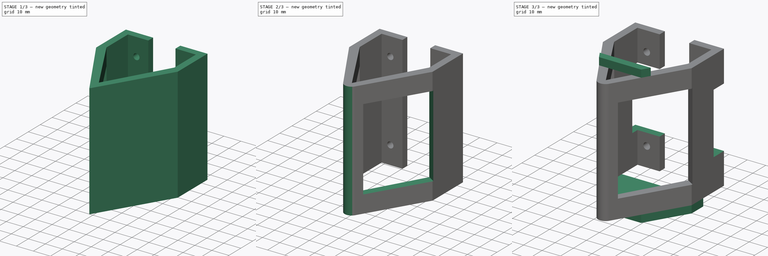
[diagram: build sequence overview — one tinted view per stage of 3, left to right]
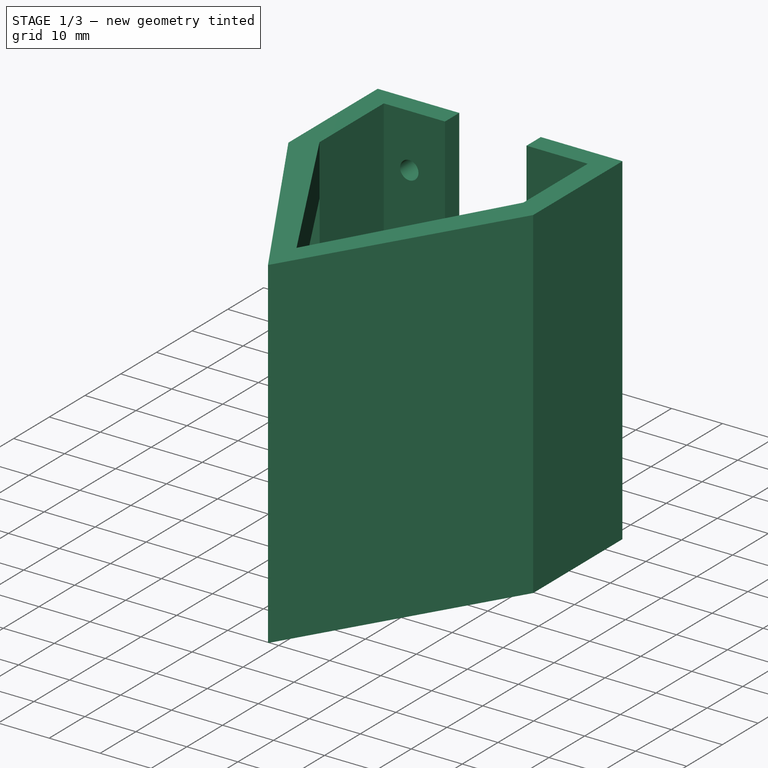
[diagram: stage 1 of 3 — iso view after this stage's code; geometry added in this stage tinted green]
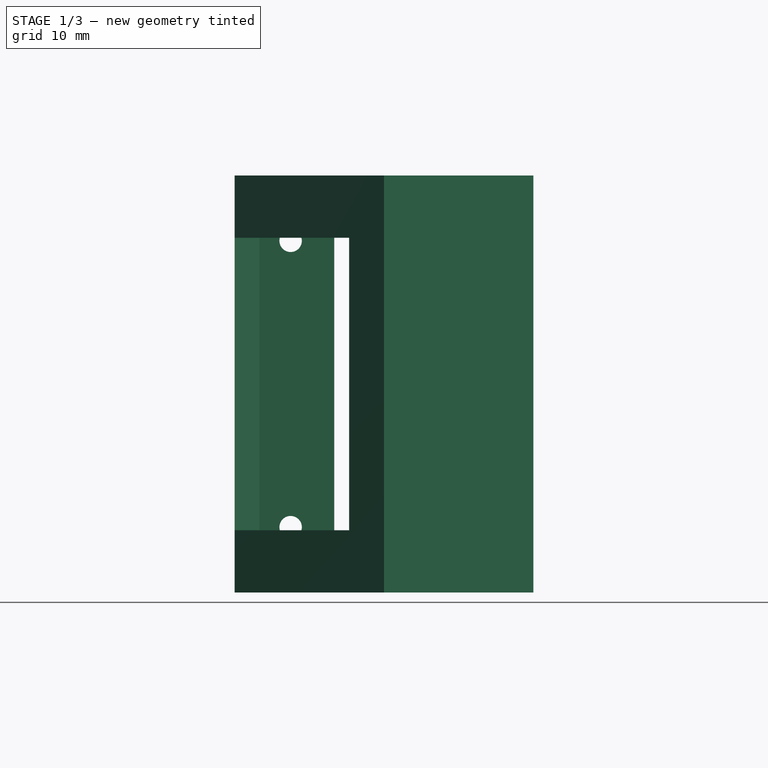
[diagram: stage 1 of 3 — front view after this stage's code; geometry added in this stage tinted green]
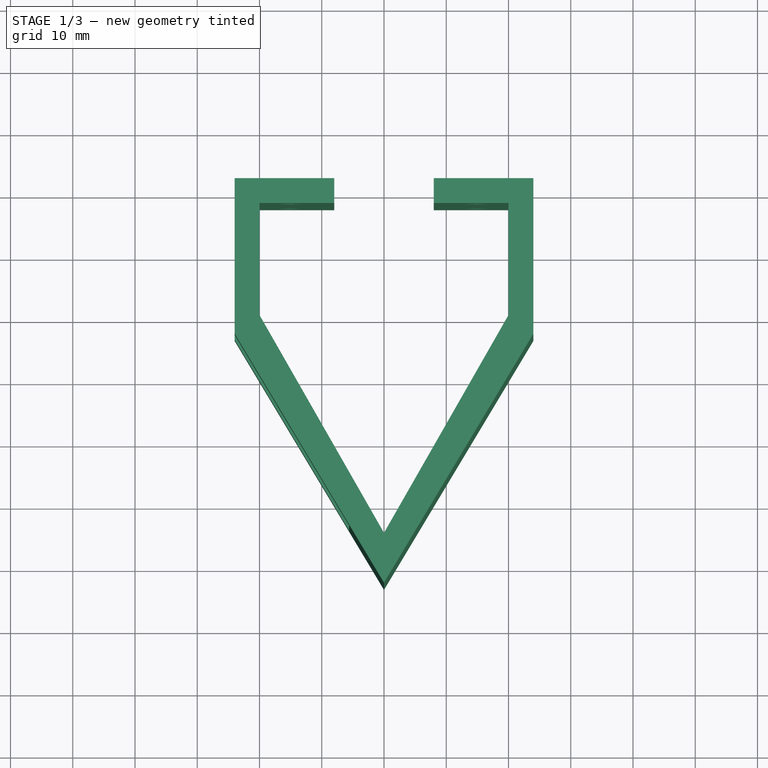
[diagram: stage 1 of 3 — top view after this stage's code; geometry added in this stage tinted green]
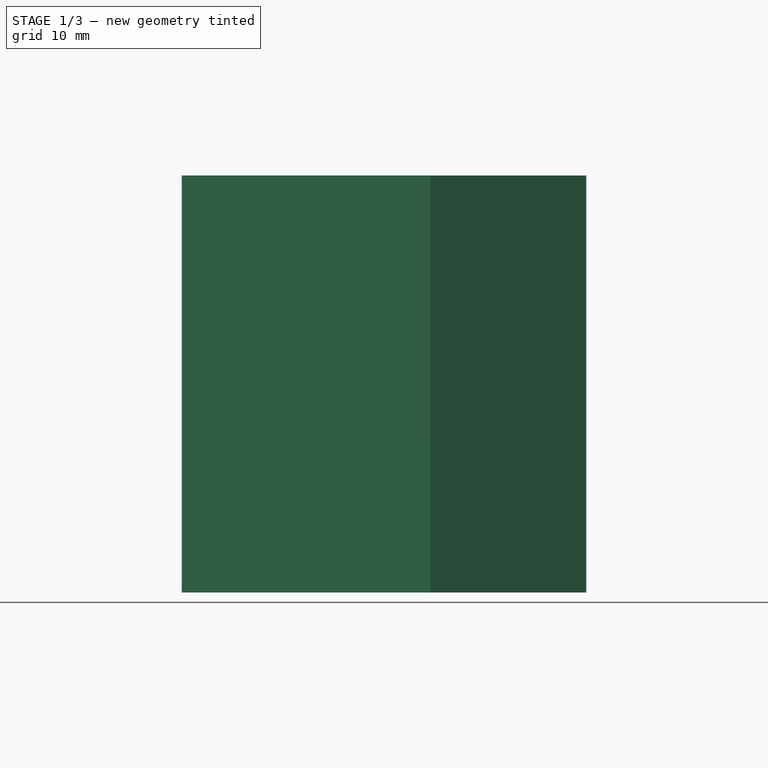
[diagram: stage 1 of 3 — right view after this stage's code; geometry added in this stage tinted green]
FCSTD DOCUMENT  (FreeCAD 0.21R33694 (Git))
Label: batteryHolder
License: All rights reserved
LicenseURL: http://en.wikipedia.org/wiki/All_rights_reserved
objects: Sketcher::SketchObject×7, PartDesign::Pocket×4, PartDesign::Pad×3, PartDesign::Fillet×1, PartDesign::Body×1
note: 24 computed .brp shape members not serialized (recipe doc carries the construction recipe); baked Part::Feature solids carry a one-line shape summary decoded from their .brp

FEATURE [Sketcher::SketchObject] Sketch
  FullyConstrained = true
  MapMode = 5
  Support = -> [XY_Plane]
  sketch-geometry (20):
    g0: LineSegment StartX=20 StartY=22 StartZ=0 EndX=24 EndY=22 EndZ=0
    g1: LineSegment StartX=24 StartY=22 StartZ=0 EndX=24 EndY=0 EndZ=0
    g2: LineSegment StartX=24 StartY=0 StartZ=0 EndX=20 EndY=0 EndZ=0
    g3: LineSegment StartX=20 StartY=0 StartZ=0 EndX=20 EndY=18 EndZ=0
    g4: LineSegment StartX=-24 StartY=22 StartZ=0 EndX=-20 EndY=22 EndZ=0
    g5: LineSegment StartX=-20 StartY=18 StartZ=0 EndX=-20 EndY=0 EndZ=0
    g6: LineSegment StartX=-20 StartY=0 StartZ=0 EndX=-24 EndY=0 EndZ=0
    g7: LineSegment StartX=-24 StartY=0 StartZ=0 EndX=-24 EndY=22 EndZ=0
    g8: LineSegment StartX=20 StartY=22 StartZ=0 EndX=8 EndY=22 EndZ=0
    g9: LineSegment StartX=8 StartY=22 StartZ=0 EndX=8 EndY=18 EndZ=0
    g10: LineSegment StartX=-20 StartY=22 StartZ=0 EndX=-8 EndY=22 EndZ=0
    g11: LineSegment StartX=-8 StartY=22 StartZ=0 EndX=-8 EndY=18 EndZ=0
    g12: LineSegment StartX=-8 StartY=18 StartZ=0 EndX=-20 EndY=18 EndZ=0
    g13: LineSegment StartX=-20 StartY=0 StartZ=0 EndX=5e-16 EndY=-35 EndZ=0
    g14: LineSegment StartX=24 StartY=0 StartZ=0 EndX=24 EndY=-3 EndZ=0
    g15: LineSegment StartX=24 StartY=-3 StartZ=0 EndX=1.4e-15 EndY=-43 EndZ=0
    g16: LineSegment StartX=1.4e-15 StartY=-43 StartZ=0 EndX=-24 EndY=-3 EndZ=0
    g17: LineSegment StartX=-24 StartY=-3 StartZ=0 EndX=-24 EndY=0 EndZ=0
    g18: LineSegment StartX=20 StartY=0 StartZ=0 EndX=-5e-16 EndY=-35 EndZ=0
    g19: LineSegment StartX=20 StartY=18 StartZ=0 EndX=8 EndY=18 EndZ=0
  constraints (58):
    c: Coincident(g0,g1)
    c: Coincident(g1,g2)
    c: Coincident(g2,g3)
    c: Horizontal(g0)
    c: Horizontal(g2)
    c: Vertical(g1)
    c: Vertical(g3)
    c: PointOnObject(g1,g-1)
    c: Coincident(g5,g6)
    c: Coincident(g6,g7)
    c: Coincident(g7,g4)
    c: Horizontal(g4)
    c: Horizontal(g6)
    c: Vertical(g5)
    c: Vertical(g7)
    c: PointOnObject(g5,g-1)
    c: DistanceY(g0,g4) = 0
    c: DistanceX(g4,g4) = 4
    c: DistanceX(g0,g0) = 4
    c: DistanceX(g-1,g2) = 20
    c: DistanceX(g5,g-1) = 20
    c: DistanceY(g-1,g4) = 22
    c: Coincident(g8,g9)
    c: Horizontal(g8)
    c: Vertical(g9)
    c: Coincident(g8,g0)
    c: Coincident(g10,g11)
    c: Coincident(g11,g12)
    c: Horizontal(g10)
    c: Horizontal(g12)
    c: Vertical(g11)
    c: Coincident(g10,g4)
    c: DistanceY(g11,g9) = 0
    c: DistanceY(g11,g10) = 4
    c: Coincident(g13,g5)
    c: PointOnObject(g13,g-2)
    c: Coincident(g14,g1)
    c: Vertical(g14)
    c: Coincident(g15,g14)
    c: PointOnObject(g15,g-2)
    c: Coincident(g16,g15)
    c: Coincident(g17,g16)
    c: Coincident(g17,g6)
    c: Vertical(g17)
    c: DistanceY(g16,g6) = 3
    c: DistanceY(g14,g1) = 3
    c: DistanceY(g15,g13) = 8
    c: DistanceY(g13,g-1) = 35
    c: Coincident(g18,g2)
    c: Coincident(g18,g13)
    c: DistanceX(g2,g1) = 4
    c: DistanceX(g6,g5) = 4
    c: DistanceX(g4,g10) = 12
    c: DistanceX(g8,g0) = 12
    c: Coincident(g5,g12)
    c: Coincident(g19,g3)
    c: Coincident(g19,g9)
    c: Horizontal(g19)
FEATURE [PartDesign::Pad] Pad
  Direction = (0,0,1)
  Length = 67
  Length2 = 10
  Profile = -> Sketch
  ReferenceAxis = -> Sketch [N_Axis]
  Type = 0
FEATURE [Sketcher::SketchObject] Sketch001
  FullyConstrained = true
  MapMode = 5
  Placement = pos=(0,22,0) rot=(0,0.707107,0.707107;3.14159rad)
  Support = -> [Pad]
  sketch-geometry (4):
    g0: Circle CenterX=15 CenterY=56.5 CenterZ=0 NormalX=0 NormalY=0 NormalZ=1 AngleXU=0 Radius=1.8
    g1: Circle CenterX=15 CenterY=10.5 CenterZ=0 NormalX=0 NormalY=0 NormalZ=1 AngleXU=0 Radius=1.8
    g2: Circle CenterX=-15 CenterY=56.5 CenterZ=0 NormalX=0 NormalY=0 NormalZ=1 AngleXU=0 Radius=1.8
    g3: Circle CenterX=-15 CenterY=10.5 CenterZ=0 NormalX=0 NormalY=0 NormalZ=1 AngleXU=0 Radius=1.8
  constraints (12):
    c: Radius(g2) = 1.8
    c: Radius(g3) = 1.8
    c: Radius(g0) = 1.8
    c: Radius(g1) = 1.8
    c: DistanceX(g3,g2) = 0
    c: DistanceX(g1,g0) = 0
    c: DistanceY(g2,g0) = 0
    c: DistanceY(g1,g3) = 0
    c: DistanceX(g-1,g1) = 15
    c: DistanceX(g3,g-1) = 15
    c: DistanceY(g-1,g1) = 10.5
    c: DistanceY(g3,g2) = 46
FEATURE [PartDesign::Pocket] Pocket
  BaseFeature = -> Pad
  Direction = (0,-1,2e-16)
  Length = 5
  Length2 = 5
  Profile = -> Sketch001
  ReferenceAxis = -> Sketch001 [N_Axis]
  Type = 0
FEATURE [Sketcher::SketchObject] Sketch002
  FullyConstrained = true
  MapMode = 5
  Placement = pos=(-18.9706,-11.3824,0) rot=(0.780597,-0.441966,-0.441966;1.816rad)
  Support = -> [Pocket]
  sketch-geometry (4):
    g0: LineSegment StartX=-10.32 StartY=57 StartZ=0 EndX=26 EndY=57 EndZ=0
    g1: LineSegment StartX=26 StartY=57 StartZ=0 EndX=26 EndY=10 EndZ=0
    g2: LineSegment StartX=26 StartY=10 StartZ=0 EndX=-10.32 EndY=10 EndZ=0
    g3: LineSegment StartX=-10.32 StartY=10 StartZ=0 EndX=-10.32 EndY=57 EndZ=0
  constraints (12):
    c: Coincident(g0,g1)
    c: Coincident(g1,g2)
    c: Coincident(g2,g3)
    c: Coincident(g3,g0)
    c: Horizontal(g0)
    c: Horizontal(g2)
    c: Vertical(g1)
    c: Vertical(g3)
    c: DistanceY(g-1,g2) = 10
    c: DistanceY(g2,g0) = 47
    c: DistanceX(g2,g-1) = 10.32
    c: DistanceX(g-1,g1) = 26
FEATURE [PartDesign::Pocket] Pocket001
  BaseFeature = -> Pocket
  Direction = (0.857493,0.514496,-1e-16)
  Length = 5
  Length2 = 5
  Profile = -> Sketch002
  ReferenceAxis = -> Sketch002 [N_Axis]
  Type = 0
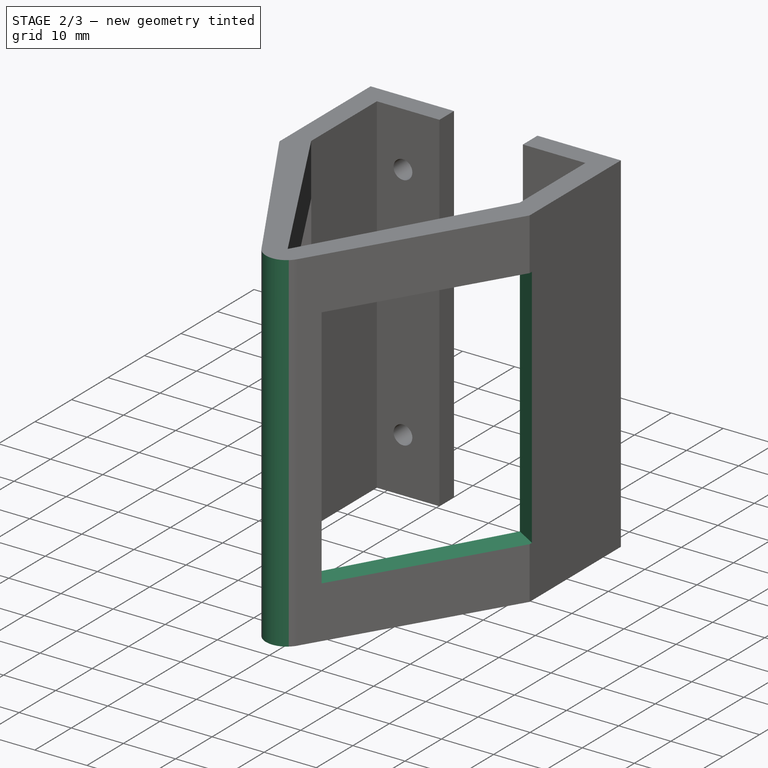
[diagram: stage 2 of 3 — iso view after this stage's code; geometry added in this stage tinted green]
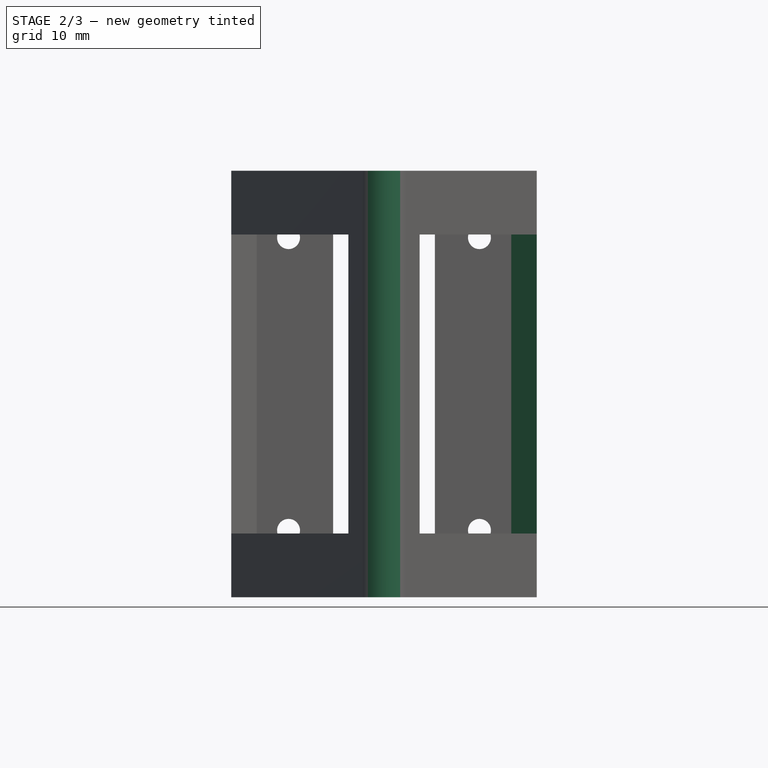
[diagram: stage 2 of 3 — front view after this stage's code; geometry added in this stage tinted green]
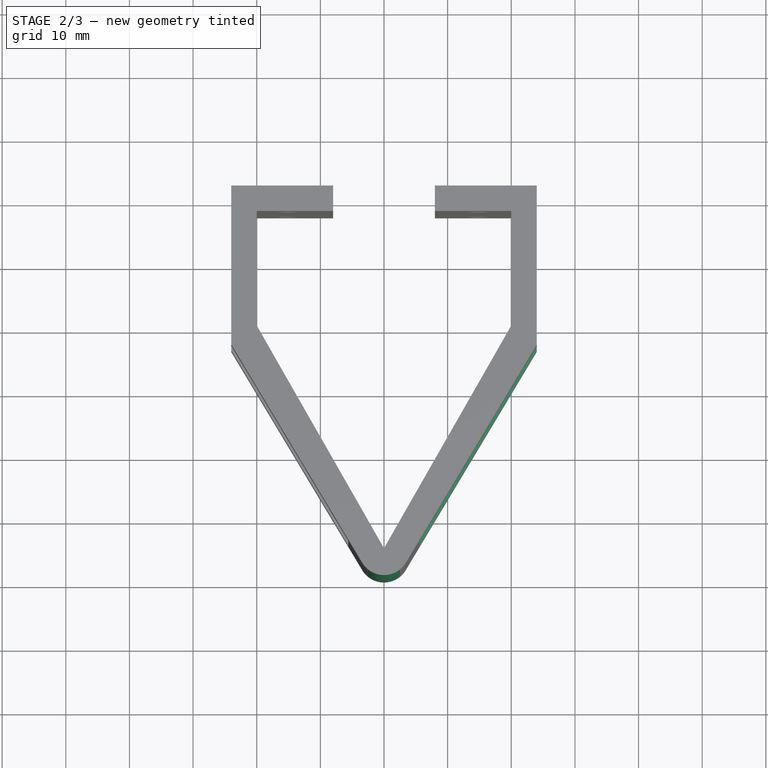
[diagram: stage 2 of 3 — top view after this stage's code; geometry added in this stage tinted green]
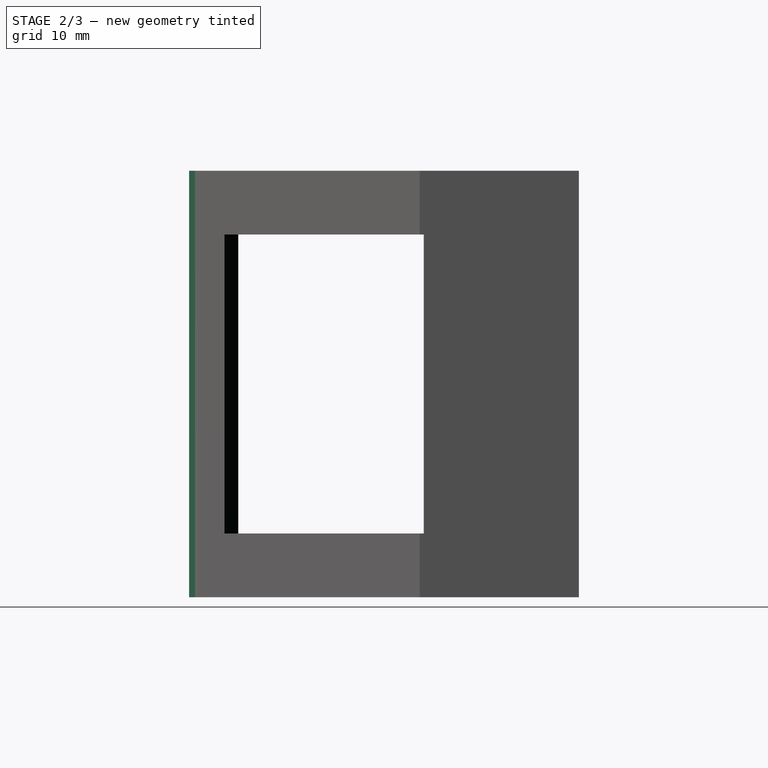
[diagram: stage 2 of 3 — right view after this stage's code; geometry added in this stage tinted green]
FEATURE [Sketcher::SketchObject] Sketch003
  FullyConstrained = true
  MapMode = 5
  Placement = pos=(18.9706,-11.3824,0) rot=(0.780597,0.441966,0.441966;1.816rad)
  Support = -> [Pocket001]
  sketch-geometry (4):
    g0: LineSegment StartX=-26 StartY=57 StartZ=0 EndX=10.32 EndY=57 EndZ=0
    g1: LineSegment StartX=10.32 StartY=57 StartZ=0 EndX=10.32 EndY=10 EndZ=0
    g2: LineSegment StartX=10.32 StartY=10 StartZ=0 EndX=-26 EndY=10 EndZ=0
    g3: LineSegment StartX=-26 StartY=10 StartZ=0 EndX=-26 EndY=57 EndZ=0
  constraints (12):
    c: Coincident(g0,g1)
    c: Coincident(g1,g2)
    c: Coincident(g2,g3)
    c: Coincident(g3,g0)
    c: Horizontal(g0)
    c: Horizontal(g2)
    c: Vertical(g1)
    c: Vertical(g3)
    c: DistanceY(g-1,g1) = 10
    c: DistanceY(g1,g0) = 47
    c: DistanceX(g-1,g1) = 10.32
    c: DistanceX(g2,g-1) = 26
FEATURE [PartDesign::Pocket] Pocket002
  BaseFeature = -> Pocket001
  Direction = (-0.857493,0.514496,-1e-16)
  Length = 5
  Length2 = 5
  Profile = -> Sketch003
  ReferenceAxis = -> Sketch003 [N_Axis]
  Type = 0
FEATURE [PartDesign::Fillet] Fillet
  Base = -> Pocket002 [Edge53]
  BaseFeature = -> Pocket002
  Radius = 4
  SupportTransform = false
  UseAllEdges = false
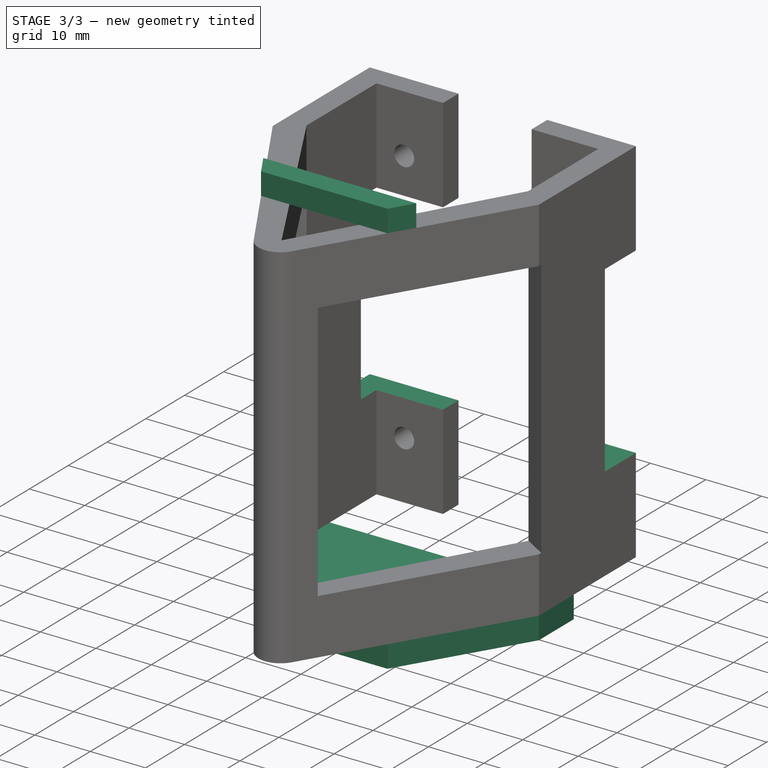
[diagram: stage 3 of 3 — iso view after this stage's code; geometry added in this stage tinted green]
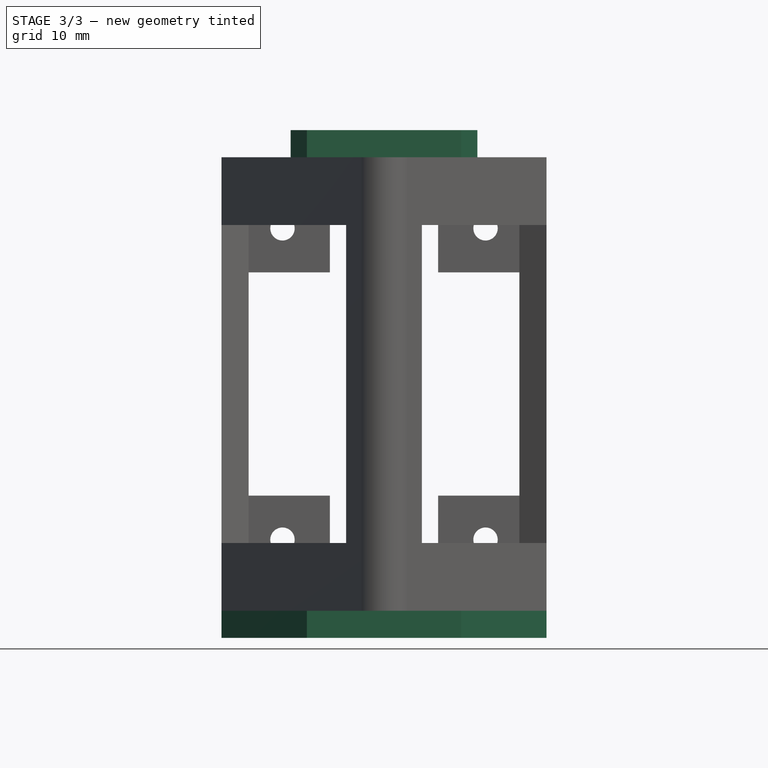
[diagram: stage 3 of 3 — front view after this stage's code; geometry added in this stage tinted green]
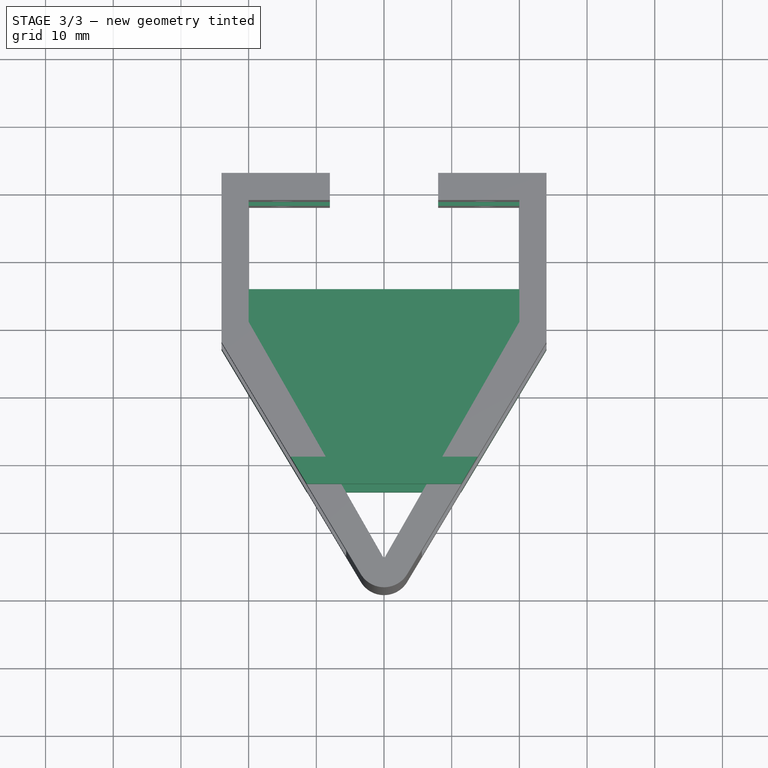
[diagram: stage 3 of 3 — top view after this stage's code; geometry added in this stage tinted green]
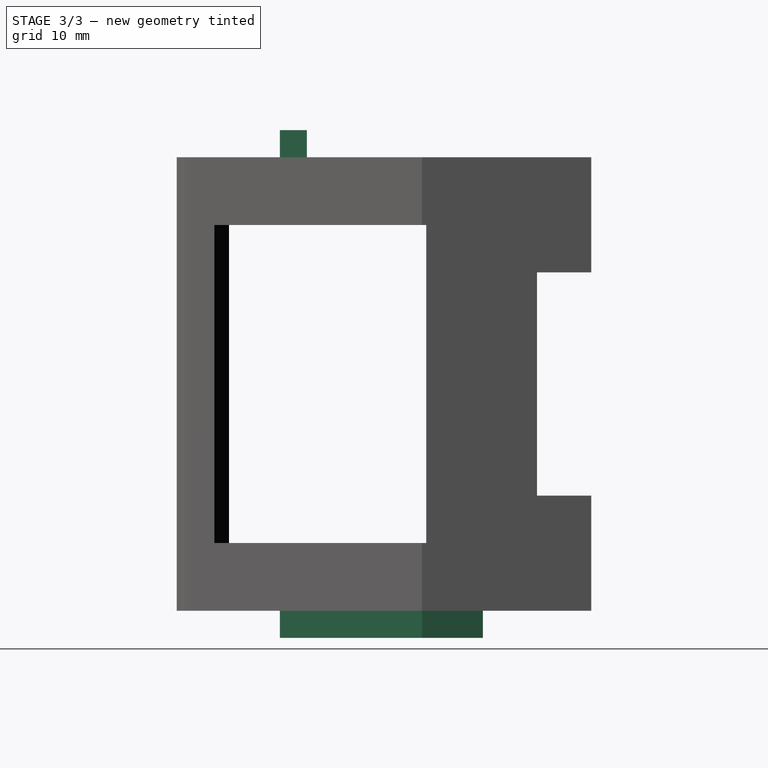
[diagram: stage 3 of 3 — right view after this stage's code; geometry added in this stage tinted green]
FEATURE [Sketcher::SketchObject] Sketch004
  FullyConstrained = true
  MapMode = 5
  Placement = pos=(0,0,0) rot=(1,0,0;3.14159rad)
  Support = -> [Pad]
  sketch-geometry (9):
    g0: LineSegment StartX=24 StartY=3 StartZ=0 EndX=24 EndY=-6 EndZ=0
    g1: LineSegment StartX=24 StartY=-6 StartZ=0 EndX=-24 EndY=-6 EndZ=0
    g2: LineSegment StartX=-24 StartY=-6 StartZ=0 EndX=-24 EndY=3 EndZ=0
    g3: LineSegment StartX=-24 StartY=3 StartZ=0 EndX=-1.4e-15 EndY=43 EndZ=0
    g4: LineSegment StartX=-1.4e-15 StartY=43 StartZ=0 EndX=24 EndY=3 EndZ=0
    g5: LineSegment StartX=-11.4 StartY=24 StartZ=0 EndX=11.4 EndY=24 EndZ=0
    g6: LineSegment StartX=11.4 StartY=24 StartZ=0 EndX=24 EndY=3 EndZ=0
    g7: LineSegment StartX=11.4 StartY=24 StartZ=0 EndX=24 EndY=3 EndZ=0
    g8: LineSegment StartX=-11.4 StartY=24 StartZ=0 EndX=-24 EndY=3 EndZ=0
  constraints (25):
    c: Vertical(g0)
    c: Coincident(g1,g0)
    c: Horizontal(g1)
    c: Coincident(g2,g1)
    c: Vertical(g2)
    c: Coincident(g3,g2)
    c: Coincident(g4,g0)
    c: DistanceY(g2,g0) = 0
    c: DistanceY(g1,g-1) = 6
    c: DistanceX(g-1,g0) = 24
    c: DistanceX(g1,g-1) = 24
    c: DistanceY(g-1,g0) = 3
    c: Coincident(g3,g4)
    c: DistanceX(g3,g-1) = 0
    c: DistanceY(g-1,g3) = 43
    c: PointOnObject(g5,g3)
    c: PointOnObject(g5,g4)
    c: Horizontal(g5)
    c: DistanceY(g-1,g5) = 24
    c: Coincident(g6,g5)
    c: Coincident(g6,g0)
    c: Coincident(g7,g5)
    c: Coincident(g7,g0)
    c: Coincident(g8,g5)
    c: Coincident(g8,g2)
FEATURE [PartDesign::Pad] Pad001
  BaseFeature = -> Fillet
  Direction = (0,0,-1)
  Length = 4
  Length2 = 10
  Profile = -> Sketch004
  ReferenceAxis = -> Sketch004 [N_Axis]
  Type = 0
FEATURE [Sketcher::SketchObject] Sketch005
  FullyConstrained = true
  MapMode = 5
  Placement = pos=(0,0,67) rot=(0,0,1;0rad)
  sketch-geometry (7):
    g0: LineSegment StartX=-24 StartY=-3 StartZ=0 EndX=24 EndY=-3 EndZ=0
    g1: LineSegment StartX=24 StartY=-3 StartZ=0 EndX=-2e-16 EndY=-43 EndZ=0
    g2: LineSegment StartX=-2e-16 StartY=-43 StartZ=0 EndX=-24 EndY=-3 EndZ=0
    g3: LineSegment StartX=13.8 StartY=-20 StartZ=0 EndX=-13.8 EndY=-20 EndZ=0
    g4: LineSegment StartX=-13.8 StartY=-20 StartZ=0 EndX=-11.4 EndY=-24 EndZ=0
    g5: LineSegment StartX=-11.4 StartY=-24 StartZ=0 EndX=11.4 EndY=-24 EndZ=0
    g6: LineSegment StartX=11.4 StartY=-24 StartZ=0 EndX=13.8 EndY=-20 EndZ=0
  constraints (21):
    c: Horizontal(g0)
    c: Coincident(g1,g0)
    c: PointOnObject(g1,g-2)
    c: Coincident(g2,g1)
    c: Coincident(g2,g0)
    c: DistanceY(g0,g-1) = 3
    c: DistanceX(g0,g-1) = 24
    c: DistanceX(g-1,g0) = 24
    c: DistanceY(g1,g-1) = 43
    c: PointOnObject(g3,g1)
    c: PointOnObject(g3,g2)
    c: Horizontal(g3)
    c: Coincident(g4,g3)
    c: PointOnObject(g4,g2)
    c: Coincident(g5,g4)
    c: PointOnObject(g5,g1)
    c: Horizontal(g5)
    c: Coincident(g6,g5)
    c: Coincident(g6,g3)
    c: DistanceY(g4,g-1) = 24
    c: DistanceY(g3,g-1) = 20
FEATURE [PartDesign::Pad] Pad002
  BaseFeature = -> Pad001
  Direction = (0,0,1)
  Length = 4
  Length2 = 10
  Profile = -> Sketch005
  ReferenceAxis = -> Sketch005 [N_Axis]
  Type = 0
FEATURE [Sketcher::SketchObject] Sketch006
  FullyConstrained = true
  MapMode = 5
  Placement = pos=(-24,0,0) rot=(0.57735,-0.57735,-0.57735;2.0944rad)
  Support = -> [Pad002]
  sketch-geometry (4):
    g0: LineSegment StartX=-22 StartY=50 StartZ=0 EndX=-14 EndY=50 EndZ=0
    g1: LineSegment StartX=-14 StartY=50 StartZ=0 EndX=-14 EndY=17 EndZ=0
    g2: LineSegment StartX=-14 StartY=17 StartZ=0 EndX=-22 EndY=17 EndZ=0
    g3: LineSegment StartX=-22 StartY=17 StartZ=0 EndX=-22 EndY=50 EndZ=0
  constraints (12):
    c: Coincident(g0,g1)
    c: Coincident(g1,g2)
    c: Coincident(g2,g3)
    c: Coincident(g3,g0)
    c: Horizontal(g0)
    c: Horizontal(g2)
    c: Vertical(g1)
    c: Vertical(g3)
    c: DistanceX(g-1,g1) = -14
    c: DistanceX(g2,g1) = 8
    c: DistanceY(g2,g0) = 33
    c: DistanceY(g-1,g2) = 17
FEATURE [PartDesign::Pocket] Pocket003
  BaseFeature = -> Pad002
  Direction = (1,0,0)
  Length = 100
  Length2 = 5
  Profile = -> Sketch006
  ReferenceAxis = -> Sketch006 [N_Axis]
  Type = 0
FEATURE [PartDesign::Body] Body
  Group = -> [Sketch,Pad,Sketch001,Pocket,Sketch002,Pocket001,Sketch003,Pocket002,Fillet,Sketch004,Pad001,Sketch005,Pad002,Sketch006,Pocket003]
  Origin = -> Origin
  Tip = -> Pocket003
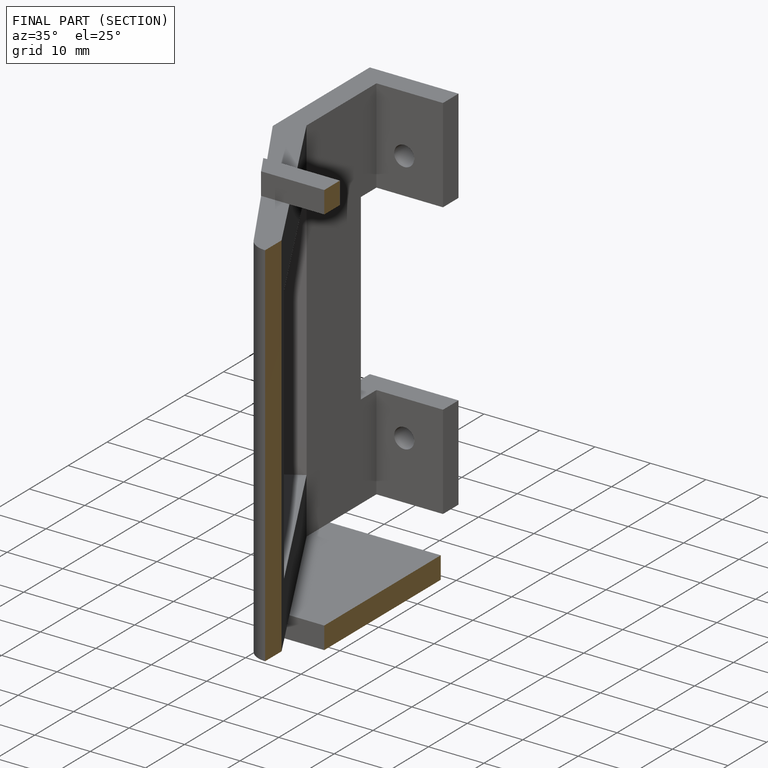
[diagram: finished part — half-section view (interior)]
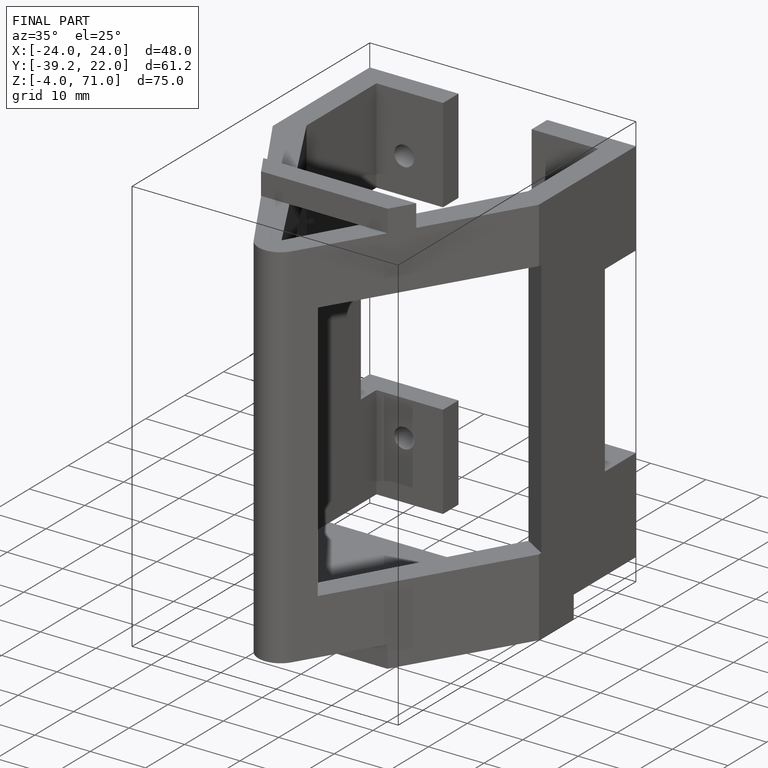
[diagram: finished part — iso view with bounding-box wireframe]
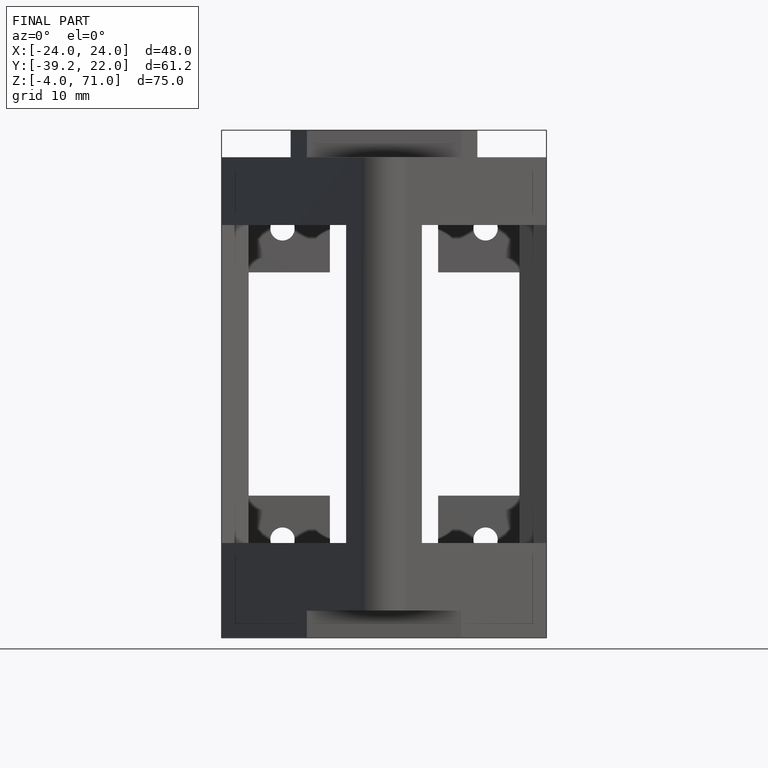
[diagram: finished part — front view with bounding-box wireframe]
